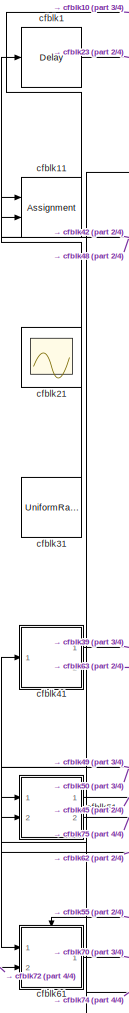
[diagram: root canvas - part 1/4, left side, full height]
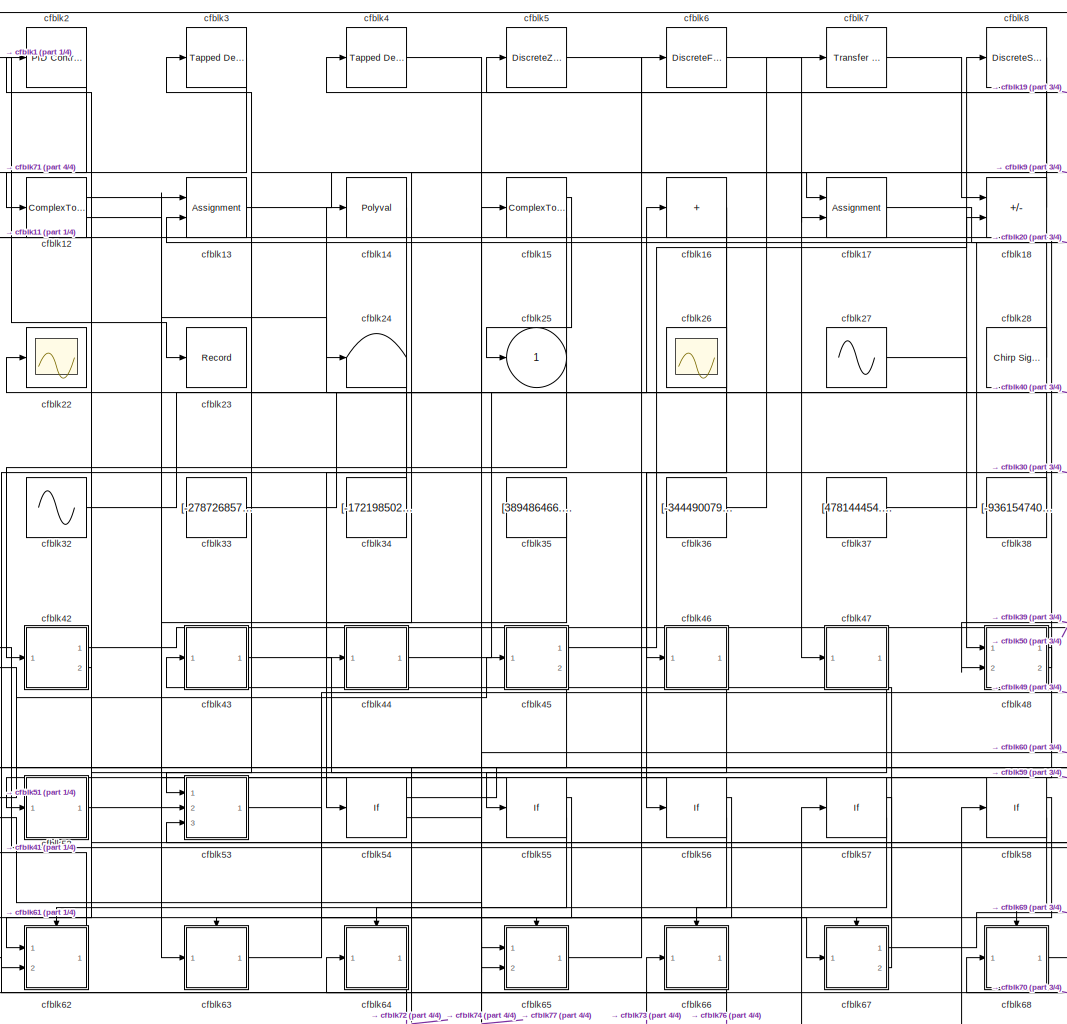
[diagram: root canvas - part 2/4, center side, full height]
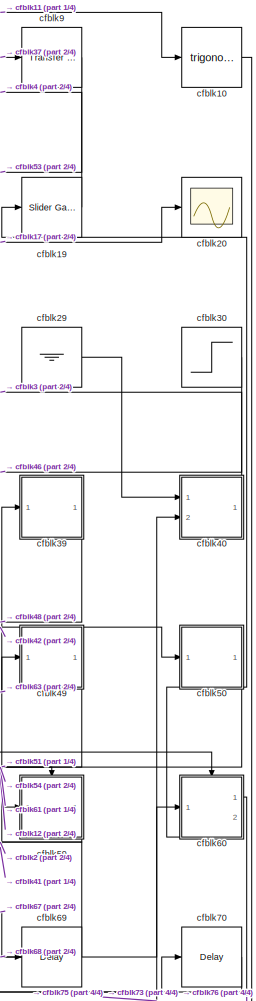
[diagram: root canvas - part 3/4, right side, full height]
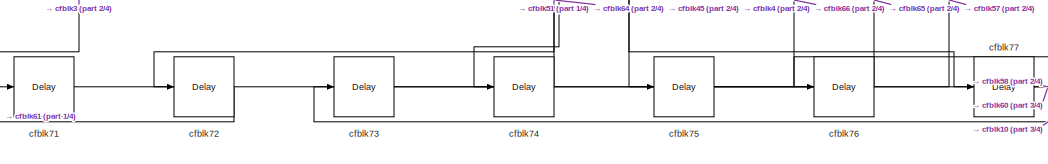
[diagram: root canvas - part 4/4, bottom center region]
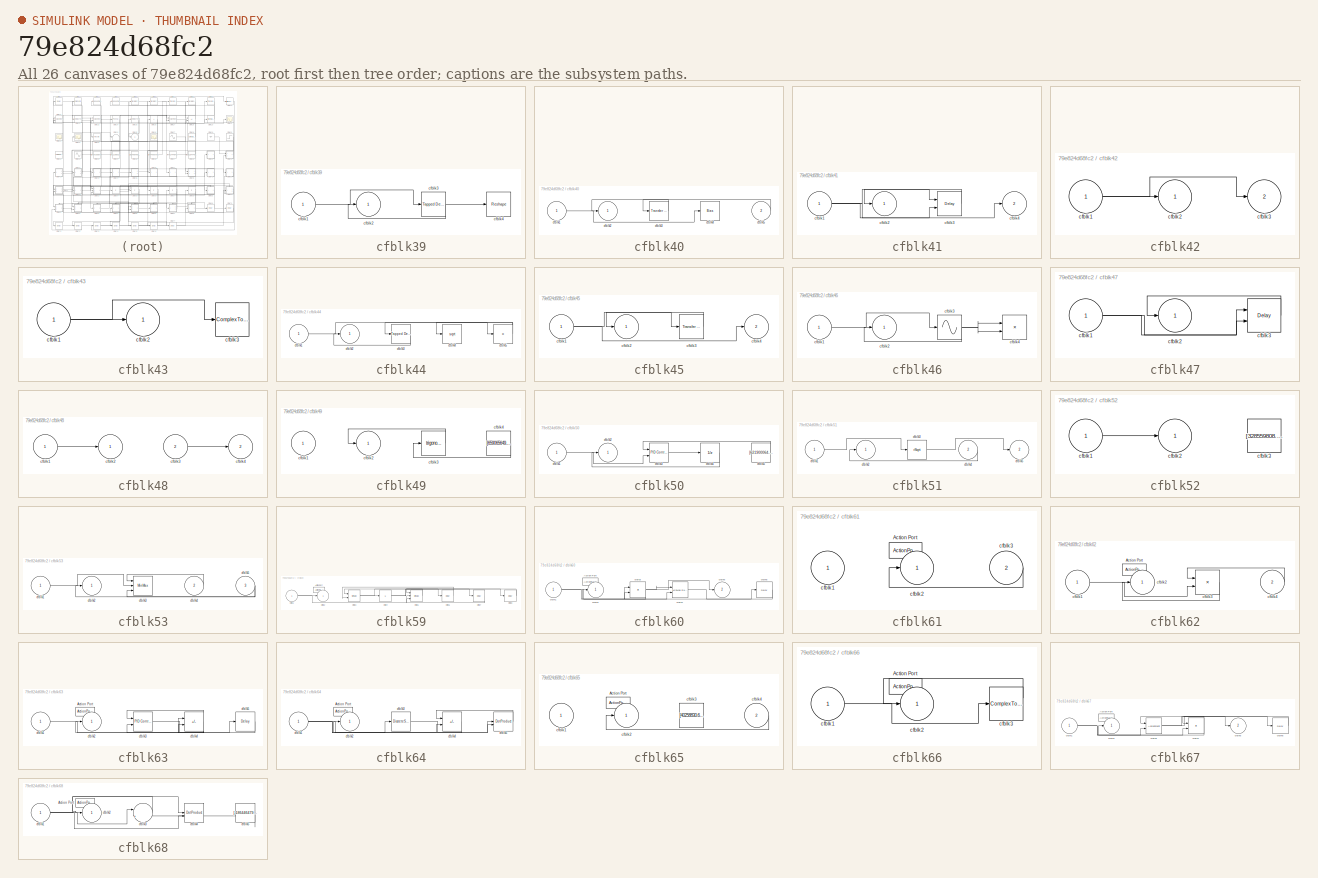
[diagram: thumbnail index - all 26 canvases of the model, root first then tree order]
MODEL slx_79e824d68fc2
KIND model
CONFIG AbsTol = auto
CONFIG EnableMultiTasking = off
CONFIG FixedStep = auto
CONFIG MaxStep = auto
CONFIG MinStep = auto
CONFIG RelTol = 1e-3
CONFIG SampleTimeConstraint = Unconstrained
CONFIG SolverName = VariableStepAuto
CONFIG StartTime = 0.0
CONFIG StopTime = 10.0
BLOCK [Delay] cfblk1
  InputPortMap = u0
  Ports = [1, 1]
  SampleTime = 1
BLOCK [Trigonometry] cfblk10
  Ports = [1, 1]
BLOCK [Assignment] cfblk11
  DiagnosticForDimensions = Warning
  IndexOptions = Index vector (dialog)
  Indices = 1
  OutputSizes = 1
  Ports = [2, 1]
BLOCK [ComplexToRealImag] cfblk12
  Ports = [1, 2]
BLOCK [Assignment] cfblk13
  DiagnosticForDimensions = Warning
  IndexOptions = Index vector (dialog)
  Indices = 1
  OutputSizes = 1
  Ports = [2, 1]
BLOCK [Polyval] cfblk14
  Coefs = [ +2.081618890e-019, -1.441693666e-014, +4.719686976e-010, -8.536869453e-006, +1.621573104e-001, -8.087801117e+001 ]
BLOCK [ComplexToRealImag] cfblk15
  Ports = [1, 2]
BLOCK [Sum] cfblk16
  IconShape = rectangular
  Inputs = +
  Ports = [1, 1]
BLOCK [Assignment] cfblk17
  DiagnosticForDimensions = Warning
  IndexOptions = Index vector (dialog)
  Indices = 1
  OutputSizes = 1
  Ports = [2, 1]
BLOCK [Sum] cfblk18
  IconShape = rectangular
  Inputs = +-
  Ports = [2, 1]
BLOCK [Reference] cfblk19  REF=simulink/Math
Operations/Slider
Gain
  Ports = [1, 1]
  SourceBlock = simulink/Math\nOperations/Slider\nGain
  SourceProductBaseCode = SL
  SourceType = Slider Gain
BLOCK [Reference] cfblk2  REF=slpidlib/PID Controller
  Ports = [1, 1]
  SourceBlock = slpidlib/PID Controller
  SourceProductBaseCode = SL
  SourceType = PID 1dof
BLOCK [Scope] cfblk20
  Floating = off
  NumInputPorts = 1
  Ports = [1]
BLOCK [Scope] cfblk21
  Floating = on
  NumInputPorts = 1
  Ports = []
BLOCK [Scope] cfblk22
  Floating = off
  NumInputPorts = 1
  Ports = [1]
BLOCK [Record] cfblk23
  FileSettingsInternal = {"entries":[{"content":{"excelSettings":{"content":{},"type":"Streamout.ExcelSettings"}},"type":"Streamout.FileSettingStorage","uuid":"5b3b41e9-ae26-456f-9000-29051a2d8f82"}],"packageUris":["http://schema.mathworks.com/mf0/streamout_blocks/R2020a"],"version":"1.0"}
  Ports = [1]
  SignalsInternal = {"entries":[{"content":{"signals":[{"content":{"blockPath":["sampleModel3/cfblk23"],"channel":[],"dimensions":[1],"domain":"sampleModel3/cfblk23","lineColor":"#0072bd","plots":[1],"port":1,"sid":[""],"signalID":125,"signalName":"cfblk1"},"type":"RecordBlkView.Signal","uuid":"8b8740eb-8148-4436-b29f-3ead965ec33f"}]},"type":"RecordBlkView.InputSignals","uuid":"47cc1f18-45fd-458e-a5e0-d18fd874fd88"}]...<+91ch>
  VisualizationBindings = {"sparklinesplugin":{"info":[{"bindingParametersList":[],"subplotID":1}]}}
BLOCK [Terminator] cfblk24
BLOCK [Outport] cfblk25
BLOCK [Scope] cfblk26
  Floating = on
  NumInputPorts = 1
  Ports = []
BLOCK [Sin] cfblk27
  Amplitude = [-750451918.679015]
  Bias = [461170723.011414]
  Ports = [0, 1]
  SampleTime = 0
BLOCK [Reference] cfblk28  REF=simulink/Sources/Chirp Signal
  Ports = [0, 1]
  SourceBlock = simulink/Sources/Chirp Signal
  SourceProductBaseCode = SL
  SourceType = chirp
BLOCK [Ground] cfblk29
BLOCK [Reference] cfblk3  REF=simulink/Discrete/Tapped Delay
  Ports = [1, 1]
  SourceBlock = simulink/Discrete/Tapped Delay
  SourceProductBaseCode = SL
  SourceType = Tapped Delay Line
BLOCK [Step] cfblk30
  After = [-355079205.275481]
  Before = [670441020.956261]
  SampleTime = 0
  Time = [37.000000]
BLOCK [UniformRandomNumber] cfblk31
  Maximum = [9791291324.338921]
  Minimum = [-4477383831.416451]
  SampleTime = 0.1
  Seed = [54930853.000000]
BLOCK [Sin] cfblk32
  Amplitude = [-339152780.786794]
  Bias = [238943110.355560]
  Ports = [0, 1]
  SampleTime = 0
BLOCK [Constant] cfblk33
  SampleTime = 1
  Value = [-278726857.995595]
BLOCK [Constant] cfblk34
  SampleTime = 1
  Value = [-172198502.619621]
BLOCK [Constant] cfblk35
  SampleTime = 1
  Value = [389486466.265220]
BLOCK [Constant] cfblk36
  SampleTime = 1
  Value = [-344490079.013186]
BLOCK [Constant] cfblk37
  SampleTime = 1
  Value = [478144454.547056]
BLOCK [Constant] cfblk38
  SampleTime = 1
  Value = [-936154740.992043]
BLOCK [SubSystem] cfblk39
  Ports = [1, 1]
  RequestExecContextInheritance = off
BLOCK [Inport] cfblk39/cfblk1
BLOCK [Outport] cfblk39/cfblk2
BLOCK [Reference] cfblk39/cfblk3  REF=simulink/Discrete/Tapped Delay
  Ports = [1, 1]
  SourceBlock = simulink/Discrete/Tapped Delay
  SourceProductBaseCode = SL
  SourceType = Tapped Delay Line
BLOCK [Reshape] cfblk39/cfblk4
  Ports = [1, 1]
BLOCK [Reference] cfblk4  REF=simulink/Discrete/Tapped Delay
  Ports = [1, 1]
  SourceBlock = simulink/Discrete/Tapped Delay
  SourceProductBaseCode = SL
  SourceType = Tapped Delay Line
BLOCK [SubSystem] cfblk40
  Ports = [2, 1]
  RequestExecContextInheritance = off
BLOCK [Inport] cfblk40/cfblk1
BLOCK [Outport] cfblk40/cfblk2
BLOCK [Reference] cfblk40/cfblk3  REF=simulink/Discrete/Transfer Fcn
Lead or Lag
  Ports = [1, 1]
  SourceBlock = simulink/Discrete/Transfer Fcn\nLead or Lag
  SourceProductBaseCode = SL
  SourceType = Lead or Lag Compensator
BLOCK [Bias] cfblk40/cfblk4
  Bias = [176418770.778987]
  SaturateOnIntegerOverflow = off
BLOCK [Inport] cfblk40/cfblk5
  Port = 2
BLOCK [SubSystem] cfblk41
  Ports = [1, 2]
  RequestExecContextInheritance = off
BLOCK [Inport] cfblk41/cfblk1
BLOCK [Outport] cfblk41/cfblk2
BLOCK [Delay] cfblk41/cfblk3
  DelayLengthSource = Input port
  InputPortMap = u0,p1
  Ports = [2, 1]
  SampleTime = 1
BLOCK [Outport] cfblk41/cfblk4
  Port = 2
BLOCK [SubSystem] cfblk42
  Ports = [1, 2]
  RequestExecContextInheritance = off
BLOCK [Inport] cfblk42/cfblk1
BLOCK [Outport] cfblk42/cfblk2
BLOCK [Outport] cfblk42/cfblk3
  Port = 2
BLOCK [SubSystem] cfblk43
  Ports = [1, 1]
  RequestExecContextInheritance = off
BLOCK [Inport] cfblk43/cfblk1
BLOCK [Outport] cfblk43/cfblk2
BLOCK [ComplexToMagnitudeAngle] cfblk43/cfblk3
  Ports = [1, 2]
BLOCK [SubSystem] cfblk44
  Ports = [1, 1]
  RequestExecContextInheritance = off
BLOCK [Inport] cfblk44/cfblk1
BLOCK [Outport] cfblk44/cfblk2
BLOCK [Reference] cfblk44/cfblk3  REF=simulink/Discrete/Tapped Delay
  Ports = [1, 1]
  SourceBlock = simulink/Discrete/Tapped Delay
  SourceProductBaseCode = SL
  SourceType = Tapped Delay Line
BLOCK [Sqrt] cfblk44/cfblk4
BLOCK [Product] cfblk44/cfblk5
  Inputs = *
  Ports = [1, 1]
BLOCK [SubSystem] cfblk45
  Ports = [1, 2]
  RequestExecContextInheritance = off
BLOCK [Inport] cfblk45/cfblk1
BLOCK [Outport] cfblk45/cfblk2
BLOCK [Reference] cfblk45/cfblk3  REF=simulink/Discrete/Transfer Fcn
Lead or Lag
  Ports = [1, 1]
  SourceBlock = simulink/Discrete/Transfer Fcn\nLead or Lag
  SourceProductBaseCode = SL
  SourceType = Lead or Lag Compensator
BLOCK [Outport] cfblk45/cfblk4
  Port = 2
BLOCK [SubSystem] cfblk46
  Ports = [1, 1]
  RequestExecContextInheritance = off
BLOCK [Inport] cfblk46/cfblk1
BLOCK [Outport] cfblk46/cfblk2
BLOCK [Sin] cfblk46/cfblk3
  Ports = [1, 1]
  SampleTime = 0
  TimeSource = Use external signal
BLOCK [Product] cfblk46/cfblk4
  Ports = [2, 1]
BLOCK [SubSystem] cfblk47
  Ports = [1, 1]
  RequestExecContextInheritance = off
BLOCK [Inport] cfblk47/cfblk1
BLOCK [Outport] cfblk47/cfblk2
BLOCK [Delay] cfblk47/cfblk3
  InputPortMap = u0,e6
  Ports = [2, 1]
  SampleTime = 1
  ShowEnablePort = on
BLOCK [SubSystem] cfblk48
  Ports = [2, 2]
  RequestExecContextInheritance = off
BLOCK [Inport] cfblk48/cfblk1
BLOCK [Outport] cfblk48/cfblk2
BLOCK [Inport] cfblk48/cfblk3
  Port = 2
BLOCK [Outport] cfblk48/cfblk4
  Port = 2
BLOCK [SubSystem] cfblk49
  Ports = [1, 1]
  RequestExecContextInheritance = off
BLOCK [Inport] cfblk49/cfblk1
BLOCK [Outport] cfblk49/cfblk2
BLOCK [Trigonometry] cfblk49/cfblk3
  Ports = [1, 1]
BLOCK [Constant] cfblk49/cfblk4
  SampleTime = 1
  Value = [659065649.053030]
BLOCK [DiscreteZeroPole] cfblk5
  Gain = 1
  Poles = [0 0.5]
BLOCK [SubSystem] cfblk50
  Ports = [1, 1]
  RequestExecContextInheritance = off
BLOCK [Inport] cfblk50/cfblk1
BLOCK [Outport] cfblk50/cfblk2
BLOCK [Reference] cfblk50/cfblk3  REF=slpidlib/PID Controller (2DOF)
  Ports = [2, 1]
  SourceBlock = slpidlib/PID Controller (2DOF)
  SourceProductBaseCode = SL
  SourceType = PID 2dof
BLOCK [UnitDelay] cfblk50/cfblk4
  HasFrameUpgradeWarning = on
BLOCK [Constant] cfblk50/cfblk5
  SampleTime = 1
  Value = [621900064.476530]
BLOCK [SubSystem] cfblk51
  Ports = [2, 2]
  RequestExecContextInheritance = off
BLOCK [Inport] cfblk51/cfblk1
BLOCK [Outport] cfblk51/cfblk2
BLOCK [Sqrt] cfblk51/cfblk3
  AlgorithmType = Newton-Raphson
  Operator = rSqrt
BLOCK [Inport] cfblk51/cfblk4
  Port = 2
BLOCK [Outport] cfblk51/cfblk5
  Port = 2
BLOCK [SubSystem] cfblk52
  Ports = [1, 1]
  RequestExecContextInheritance = off
BLOCK [Inport] cfblk52/cfblk1
BLOCK [Outport] cfblk52/cfblk2
BLOCK [Constant] cfblk52/cfblk3
  SampleTime = 1
  Value = [328559808.836102]
BLOCK [SubSystem] cfblk53
  Ports = [3, 1]
  RequestExecContextInheritance = off
BLOCK [Inport] cfblk53/cfblk1
BLOCK [Outport] cfblk53/cfblk2
BLOCK [MinMax] cfblk53/cfblk3
  Inputs = 3
  Ports = [3, 1]
BLOCK [Inport] cfblk53/cfblk4
  Port = 2
BLOCK [Inport] cfblk53/cfblk5
  Port = 3
BLOCK [If] cfblk54
  IfExpression = u1 >= 0
  Ports = [1, 2]
  SampleTime = 1
BLOCK [If] cfblk55
  IfExpression = u1 >= 0
  Ports = [1, 2]
  SampleTime = 1
BLOCK [If] cfblk56
  IfExpression = u1 >= 0
  Ports = [1, 2]
  SampleTime = 1
BLOCK [If] cfblk57
  IfExpression = u1 >= 0
  Ports = [1, 2]
  SampleTime = 1
BLOCK [If] cfblk58
  IfExpression = u1 >= 0
  Ports = [1, 2]
  SampleTime = 1
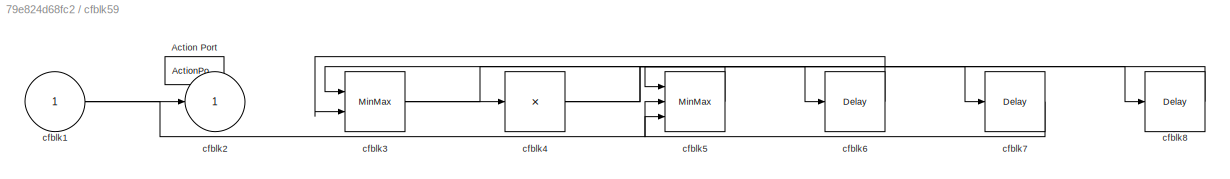
BLOCK [SubSystem] cfblk59
  Ports = [1, 1, 0, 0, 0, 0, 0, 1]
  RequestExecContextInheritance = off
  TreatAsAtomicUnit = on
BLOCK [ActionPort] cfblk59/Action Port
  ActionPortLabel = if(u1 >= 0)
BLOCK [Inport] cfblk59/cfblk1
BLOCK [Outport] cfblk59/cfblk2
BLOCK [MinMax] cfblk59/cfblk3
  Function = max
  Inputs = 2
  Ports = [2, 1]
BLOCK [Product] cfblk59/cfblk4
  Inputs = *
  Ports = [1, 1]
BLOCK [MinMax] cfblk59/cfblk5
  Function = max
  Inputs = 3
  Ports = [3, 1]
BLOCK [Delay] cfblk59/cfblk6
  InputPortMap = u0
  Ports = [1, 1]
BLOCK [Delay] cfblk59/cfblk7
  InputPortMap = u0
  Ports = [1, 1]
BLOCK [Delay] cfblk59/cfblk8
  InputPortMap = u0
  Ports = [1, 1]
BLOCK [DiscreteFir] cfblk6
  InputPortMap = u0
  OutputPortMap = o0
  Ports = [1, 1]
  SampleTime = 1
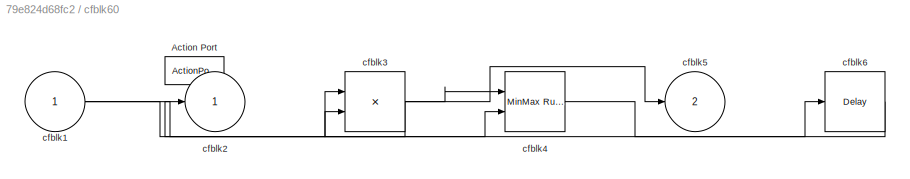
BLOCK [SubSystem] cfblk60
  Ports = [1, 2, 0, 0, 0, 0, 0, 1]
  RequestExecContextInheritance = off
  TreatAsAtomicUnit = on
BLOCK [ActionPort] cfblk60/Action Port
  ActionPortLabel = else
BLOCK [Inport] cfblk60/cfblk1
BLOCK [Outport] cfblk60/cfblk2
BLOCK [Product] cfblk60/cfblk3
  Ports = [2, 1]
BLOCK [Reference] cfblk60/cfblk4  REF=simulink/Math
Operations/MinMax
Running
Resettable
  Ports = [2, 1]
  SourceBlock = simulink/Math\nOperations/MinMax\nRunning\nResettable
  SourceProductBaseCode = SL
  SourceType = MinMax Running Resettable
BLOCK [Outport] cfblk60/cfblk5
  Port = 2
BLOCK [Delay] cfblk60/cfblk6
  InputPortMap = u0
  Ports = [1, 1]
BLOCK [SubSystem] cfblk61
  Ports = [2, 1, 0, 0, 0, 0, 0, 1]
  RequestExecContextInheritance = off
  TreatAsAtomicUnit = on
BLOCK [ActionPort] cfblk61/Action Port
  ActionPortLabel = if(u1 >= 0)
BLOCK [Inport] cfblk61/cfblk1
BLOCK [Outport] cfblk61/cfblk2
BLOCK [Inport] cfblk61/cfblk3
  Port = 2
BLOCK [SubSystem] cfblk62
  Ports = [2, 1, 0, 0, 0, 0, 0, 1]
  RequestExecContextInheritance = off
  TreatAsAtomicUnit = on
BLOCK [ActionPort] cfblk62/Action Port
  ActionPortLabel = else
BLOCK [Inport] cfblk62/cfblk1
BLOCK [Outport] cfblk62/cfblk2
BLOCK [Product] cfblk62/cfblk3
  Inputs = **
  Ports = [2, 1]
BLOCK [Inport] cfblk62/cfblk4
  Port = 2
BLOCK [SubSystem] cfblk63
  Ports = [1, 1, 0, 0, 0, 0, 0, 1]
  RequestExecContextInheritance = off
  TreatAsAtomicUnit = on
BLOCK [ActionPort] cfblk63/Action Port
  ActionPortLabel = if(u1 >= 0)
BLOCK [Inport] cfblk63/cfblk1
BLOCK [Outport] cfblk63/cfblk2
BLOCK [Reference] cfblk63/cfblk3  REF=slpidlib/PID Controller (2DOF)
  Ports = [2, 1]
  SourceBlock = slpidlib/PID Controller (2DOF)
  SourceProductBaseCode = SL
  SourceType = PID 2dof
BLOCK [Sum] cfblk63/cfblk4
  IconShape = rectangular
  Inputs = +-
  Ports = [2, 1]
BLOCK [Delay] cfblk63/cfblk5
  InputPortMap = u0
  Ports = [1, 1]
BLOCK [SubSystem] cfblk64
  Ports = [1, 1, 0, 0, 0, 0, 0, 1]
  RequestExecContextInheritance = off
  TreatAsAtomicUnit = on
BLOCK [ActionPort] cfblk64/Action Port
  ActionPortLabel = else
BLOCK [Inport] cfblk64/cfblk1
BLOCK [Outport] cfblk64/cfblk2
BLOCK [DiscreteStateSpace] cfblk64/cfblk3
  SampleTime = -1
BLOCK [Sum] cfblk64/cfblk4
  IconShape = rectangular
  Inputs = -+
  Ports = [2, 1]
BLOCK [DotProduct] cfblk64/cfblk5
  OutDataTypeStr = Inherit: Inherit via internal rule
BLOCK [SubSystem] cfblk65
  Ports = [2, 1, 0, 0, 0, 0, 0, 1]
  RequestExecContextInheritance = off
  TreatAsAtomicUnit = on
BLOCK [ActionPort] cfblk65/Action Port
  ActionPortLabel = if(u1 >= 0)
BLOCK [Inport] cfblk65/cfblk1
BLOCK [Outport] cfblk65/cfblk2
BLOCK [Constant] cfblk65/cfblk3
  SampleTime = 1
  Value = [40258830.621484]
BLOCK [Inport] cfblk65/cfblk4
  Port = 2
BLOCK [SubSystem] cfblk66
  Ports = [1, 1, 0, 0, 0, 0, 0, 1]
  RequestExecContextInheritance = off
  TreatAsAtomicUnit = on
BLOCK [ActionPort] cfblk66/Action Port
  ActionPortLabel = else
BLOCK [Inport] cfblk66/cfblk1
BLOCK [Outport] cfblk66/cfblk2
BLOCK [ComplexToMagnitudeAngle] cfblk66/cfblk3
  Ports = [1, 2]
BLOCK [SubSystem] cfblk67
  Ports = [1, 2, 0, 0, 0, 0, 0, 1]
  RequestExecContextInheritance = off
  TreatAsAtomicUnit = on
BLOCK [ActionPort] cfblk67/Action Port
  ActionPortLabel = if(u1 >= 0)
BLOCK [Inport] cfblk67/cfblk1
BLOCK [Outport] cfblk67/cfblk2
BLOCK [Assignment] cfblk67/cfblk3
  DiagnosticForDimensions = Warning
  IndexOptions = Index vector (dialog)
  Indices = 1
  OutputSizes = 1
  Ports = [2, 1]
BLOCK [Product] cfblk67/cfblk4
  Ports = [2, 1]
BLOCK [Outport] cfblk67/cfblk5
  Port = 2
BLOCK [Delay] cfblk67/cfblk6
  InputPortMap = u0
  Ports = [1, 1]
BLOCK [SubSystem] cfblk68
  Ports = [1, 1, 0, 0, 0, 0, 0, 1]
  RequestExecContextInheritance = off
  TreatAsAtomicUnit = on
BLOCK [ActionPort] cfblk68/Action Port
  ActionPortLabel = else
BLOCK [Inport] cfblk68/cfblk1
BLOCK [Outport] cfblk68/cfblk2
BLOCK [Sum] cfblk68/cfblk3
  Inputs = |++
  Ports = [2, 1]
BLOCK [DotProduct] cfblk68/cfblk4
  OutDataTypeStr = Inherit: Inherit via internal rule
BLOCK [Constant] cfblk68/cfblk5
  SampleTime = 1
  Value = [-186446479.569549]
BLOCK [Delay] cfblk69
  InputPortMap = u0
  Ports = [1, 1]
  SampleTime = 1
BLOCK [Reference] cfblk7  REF=simulink/Discrete/Transfer Fcn
Lead or Lag
  Ports = [1, 1]
  SourceBlock = simulink/Discrete/Transfer Fcn\nLead or Lag
  SourceProductBaseCode = SL
  SourceType = Lead or Lag Compensator
BLOCK [Delay] cfblk70
  InputPortMap = u0
  Ports = [1, 1]
  SampleTime = 1
BLOCK [Delay] cfblk71
  InputPortMap = u0
  Ports = [1, 1]
  SampleTime = 1
BLOCK [Delay] cfblk72
  InputPortMap = u0
  Ports = [1, 1]
  SampleTime = 1
BLOCK [Delay] cfblk73
  InputPortMap = u0
  Ports = [1, 1]
  SampleTime = 1
BLOCK [Delay] cfblk74
  InputPortMap = u0
  Ports = [1, 1]
  SampleTime = 1
BLOCK [Delay] cfblk75
  InputPortMap = u0
  Ports = [1, 1]
  SampleTime = 1
BLOCK [Delay] cfblk76
  InputPortMap = u0
  Ports = [1, 1]
  SampleTime = 1
BLOCK [Delay] cfblk77
  InputPortMap = u0
  Ports = [1, 1]
  SampleTime = 1
BLOCK [DiscreteStateSpace] cfblk8
BLOCK [Reference] cfblk9  REF=simulink/Discrete/Transfer Fcn
First Order
  Ports = [1, 1]
  SourceBlock = simulink/Discrete/Transfer Fcn\nFirst Order
  SourceProductBaseCode = SL
  SourceType = First Order Transfer Fcn
LINE cfblk10:1 -> cfblk73:1
LINE cfblk11:1 -> cfblk10:1
LINE cfblk12:1 -> cfblk59:1
LINE cfblk12:2 -> cfblk24:1
LINE cfblk13:1 -> cfblk17:1
LINE cfblk14:1 -> cfblk54:1
LINE cfblk15:1 -> cfblk25:1
LINE cfblk15:2 -> cfblk42:1
NET cfblk16:1 -> cfblk56:1, cfblk62:2
LINE cfblk17:1 -> cfblk20:1
LINE cfblk18:1 -> cfblk5:1
LINE cfblk19:1 -> cfblk4:1
LINE cfblk1:1 -> cfblk23:1
LINE cfblk27:1 -> cfblk48:1
LINE cfblk28:1 -> cfblk13:2
LINE cfblk29:1 -> cfblk40:1
LINE cfblk2:1 -> cfblk12:1
LINE cfblk30:1 -> cfblk46:1
LINE cfblk31:1 -> cfblk1:1
LINE cfblk32:1 -> cfblk16:1
LINE cfblk33:1 -> cfblk15:1
LINE cfblk34:1 -> cfblk22:1
LINE cfblk35:1 -> cfblk53:2
LINE cfblk36:1 -> cfblk7:1
LINE cfblk37:1 -> cfblk9:1
LINE cfblk38:1 -> cfblk14:1
LINE cfblk39/cfblk1:1 -> cfblk39/cfblk3:1
NET cfblk39/cfblk3:1 -> cfblk39/cfblk2:1, cfblk39/cfblk4:1
LINE cfblk39:1 -> cfblk48:2
LINE cfblk3:1 -> cfblk71:1
LINE cfblk40/cfblk1:1 -> cfblk40/cfblk4:1
LINE cfblk40/cfblk3:1 -> cfblk40/cfblk2:1
LINE cfblk40/cfblk5:1 -> cfblk40/cfblk3:1
LINE cfblk40:1 -> cfblk3:1
NET cfblk41/cfblk1:1 -> cfblk41/cfblk3:1, cfblk41/cfblk3:2, cfblk41/cfblk4:1
LINE cfblk41/cfblk3:1 -> cfblk41/cfblk2:1
LINE cfblk41:1 -> cfblk39:1
LINE cfblk41:2 -> cfblk63:1
NET cfblk42/cfblk1:1 -> cfblk42/cfblk2:1, cfblk42/cfblk3:1
LINE cfblk42:1 -> cfblk50:1
LINE cfblk42:2 -> cfblk11:2
NET cfblk43/cfblk1:1 -> cfblk43/cfblk2:1, cfblk43/cfblk3:1
LINE cfblk43:1 -> cfblk65:2
LINE cfblk44/cfblk1:1 -> cfblk44/cfblk5:1
LINE cfblk44/cfblk3:1 -> cfblk44/cfblk2:1
NET cfblk44/cfblk5:1 -> cfblk44/cfblk3:1, cfblk44/cfblk4:1
LINE cfblk44:1 -> cfblk18:2
NET cfblk45/cfblk1:1 -> cfblk45/cfblk3:1, cfblk45/cfblk4:1
LINE cfblk45/cfblk3:1 -> cfblk45/cfblk2:1
LINE cfblk45:1 -> cfblk8:1
LINE cfblk45:2 -> cfblk74:1
LINE cfblk46/cfblk1:1 -> cfblk46/cfblk3:1
NET cfblk46/cfblk3:1 -> cfblk46/cfblk2:1, cfblk46/cfblk4:1, cfblk46/cfblk4:2
LINE cfblk46:1 -> cfblk62:1
NET cfblk47/cfblk1:1 -> cfblk47/cfblk3:1, cfblk47/cfblk3:2
LINE cfblk47/cfblk3:1 -> cfblk47/cfblk2:1
LINE cfblk47:1 -> cfblk55:1
LINE cfblk48/cfblk1:1 -> cfblk48/cfblk2:1
LINE cfblk48/cfblk3:1 -> cfblk48/cfblk4:1
LINE cfblk48:1 -> cfblk52:1
LINE cfblk48:2 -> cfblk11:1
LINE cfblk49/cfblk3:1 -> cfblk49/cfblk2:1
LINE cfblk49/cfblk4:1 -> cfblk49/cfblk3:1
LINE cfblk49:1 -> cfblk51:1
LINE cfblk4:1 -> cfblk77:1
LINE cfblk50/cfblk1:1 -> cfblk50/cfblk3:2
LINE cfblk50/cfblk3:1 -> cfblk50/cfblk4:1
LINE cfblk50/cfblk4:1 -> cfblk50/cfblk2:1
LINE cfblk50/cfblk5:1 -> cfblk50/cfblk3:1
LINE cfblk50:1 -> cfblk61:1
LINE cfblk51/cfblk1:1 -> cfblk51/cfblk3:1
LINE cfblk51/cfblk3:1 -> cfblk51/cfblk5:1
LINE cfblk51/cfblk4:1 -> cfblk51/cfblk2:1
LINE cfblk51:1 -> cfblk45:1
LINE cfblk51:2 -> cfblk75:1
LINE cfblk52/cfblk1:1 -> cfblk52/cfblk2:1
LINE cfblk52:1 -> cfblk13:1
LINE cfblk53/cfblk1:1 -> cfblk53/cfblk3:2
LINE cfblk53/cfblk4:1 -> cfblk53/cfblk3:1
NET cfblk53/cfblk5:1 -> cfblk53/cfblk2:1, cfblk53/cfblk3:3
LINE cfblk53:1 -> cfblk67:1
LINE cfblk54:1 -> cfblk59:ifaction
LINE cfblk54:2 -> cfblk60:ifaction
LINE cfblk55:1 -> cfblk61:ifaction
LINE cfblk55:2 -> cfblk62:ifaction
LINE cfblk56:1 -> cfblk63:ifaction
LINE cfblk56:2 -> cfblk64:ifaction
LINE cfblk57:1 -> cfblk65:ifaction
LINE cfblk57:2 -> cfblk66:ifaction
LINE cfblk58:1 -> cfblk67:ifaction
LINE cfblk58:2 -> cfblk68:ifaction
NET cfblk59/cfblk1:1 -> cfblk59/cfblk2:1, cfblk59/cfblk5:2
NET cfblk59/cfblk3:1 -> cfblk59/cfblk4:1, cfblk59/cfblk8:1
NET cfblk59/cfblk4:1 -> cfblk59/cfblk6:1, cfblk59/cfblk7:1
LINE cfblk59/cfblk5:1 -> cfblk59/cfblk3:1
LINE cfblk59/cfblk6:1 -> cfblk59/cfblk3:2
LINE cfblk59/cfblk7:1 -> cfblk59/cfblk5:3
LINE cfblk59/cfblk8:1 -> cfblk59/cfblk5:1
LINE cfblk59:1 -> cfblk53:3
LINE cfblk5:1 -> cfblk17:2
NET cfblk60/cfblk1:1 -> cfblk60/cfblk3:1, cfblk60/cfblk4:2
NET cfblk60/cfblk3:1 -> cfblk60/cfblk2:1, cfblk60/cfblk4:1, cfblk60/cfblk5:1
LINE cfblk60/cfblk4:1 -> cfblk60/cfblk6:1
LINE cfblk60/cfblk6:1 -> cfblk60/cfblk3:2
LINE cfblk60:1 -> cfblk76:1
LINE cfblk60:2 -> cfblk19:1
LINE cfblk61/cfblk3:1 -> cfblk61/cfblk2:1
LINE cfblk61:1 -> cfblk70:1
LINE cfblk62/cfblk1:1 -> cfblk62/cfblk3:2
LINE cfblk62/cfblk3:1 -> cfblk62/cfblk2:1
LINE cfblk62/cfblk4:1 -> cfblk62/cfblk3:1
LINE cfblk62:1 -> cfblk41:1
LINE cfblk63/cfblk1:1 -> cfblk63/cfblk4:1
LINE cfblk63/cfblk3:1 -> cfblk63/cfblk5:1
NET cfblk63/cfblk4:1 -> cfblk63/cfblk2:1, cfblk63/cfblk3:1, cfblk63/cfblk3:2
LINE cfblk63/cfblk5:1 -> cfblk63/cfblk4:2
LINE cfblk63:1 -> cfblk49:1
NET cfblk64/cfblk1:1 -> cfblk64/cfblk3:1, cfblk64/cfblk4:2, cfblk64/cfblk5:1
LINE cfblk64/cfblk3:1 -> cfblk64/cfblk5:2
LINE cfblk64/cfblk4:1 -> cfblk64/cfblk2:1
LINE cfblk64/cfblk5:1 -> cfblk64/cfblk4:1
LINE cfblk64:1 -> cfblk72:1
LINE cfblk65/cfblk4:1 -> cfblk65/cfblk2:1
LINE cfblk65:1 -> cfblk6:1
LINE cfblk66/cfblk1:1 -> cfblk66/cfblk3:1
LINE cfblk66/cfblk3:1 -> cfblk66/cfblk2:1
LINE cfblk66:1 -> cfblk64:1
NET cfblk67/cfblk1:1 -> cfblk67/cfblk3:2, cfblk67/cfblk4:2
NET cfblk67/cfblk3:1 -> cfblk67/cfblk5:1, cfblk67/cfblk6:1
NET cfblk67/cfblk4:1 -> cfblk67/cfblk2:1, cfblk67/cfblk3:1
LINE cfblk67/cfblk6:1 -> cfblk67/cfblk4:1
LINE cfblk67:1 -> cfblk69:1
LINE cfblk67:2 -> cfblk43:1
NET cfblk68/cfblk1:1 -> cfblk68/cfblk3:1, cfblk68/cfblk4:1, cfblk68/cfblk4:2
LINE cfblk68/cfblk3:1 -> cfblk68/cfblk2:1
LINE cfblk68/cfblk5:1 -> cfblk68/cfblk3:2
LINE cfblk68:1 -> cfblk40:2
LINE cfblk69:1 -> cfblk2:1
LINE cfblk6:1 -> cfblk47:1
LINE cfblk70:1 -> cfblk68:1
LINE cfblk71:1 -> cfblk57:1
LINE cfblk72:1 -> cfblk61:2
LINE cfblk73:1 -> cfblk66:1
LINE cfblk74:1 -> cfblk51:2
LINE cfblk75:1 -> cfblk60:1
LINE cfblk76:1 -> cfblk65:1
LINE cfblk77:1 -> cfblk58:1
LINE cfblk7:1 -> cfblk18:1
LINE cfblk8:1 -> cfblk44:1
LINE cfblk9:1 -> cfblk53:1
note: NET lines group one-source signal fan-out (src -> all destinations, sorted); 1:1 wires keep LINE
